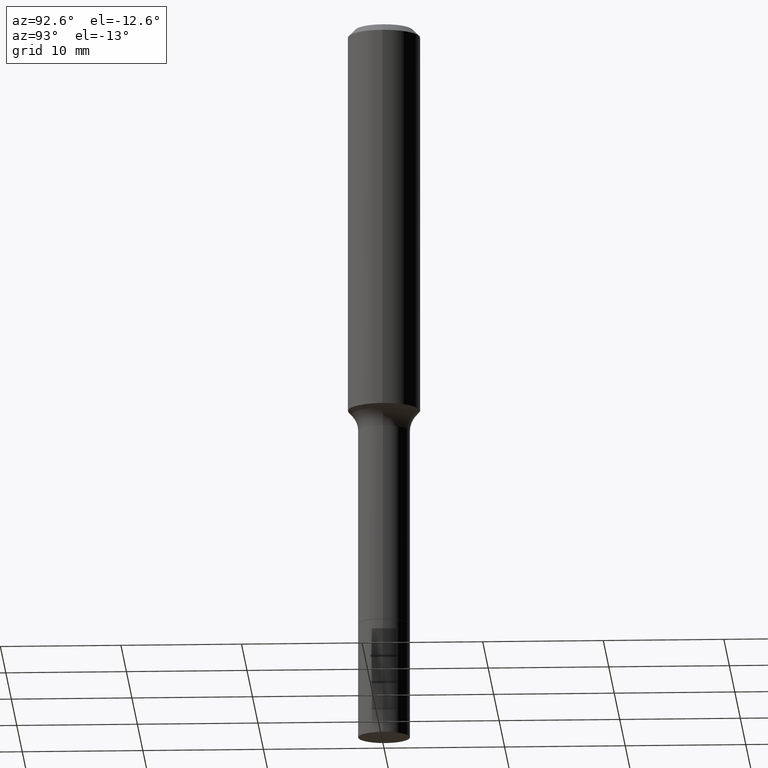
[diagram: clean part render]
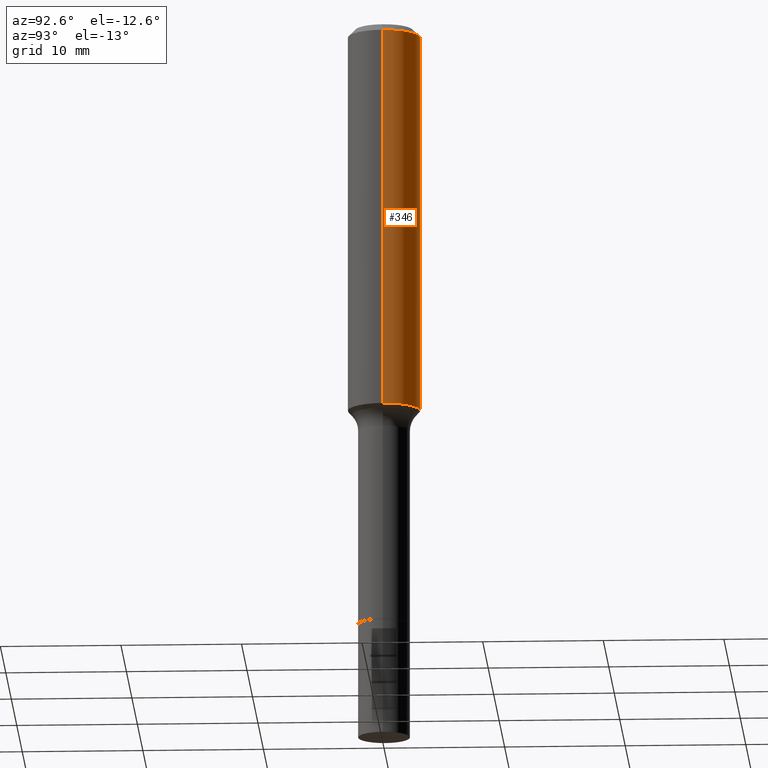
[diagram: same view with one face highlighted and labeled with its STEP entity id]
A machine part, auxiliary view. The second image highlights one B-rep face of the part: STEP entity #346.
In plain terms, the highlighted cylindrical surface (edge-blend (fillet) strip) has radius 2.9997 mm, axis along (-0, 0, 1).
Its self-contained STEP definition (entity closure, byte-faithful):
#2 = ORIENTED_EDGE ( 'NONE', *, *, #66, .F. ) ;
#3 = VERTEX_POINT ( 'NONE', #330 ) ;
#14 = DIRECTION ( 'NONE',  ( -2.445468806185136877E-29, 3.491481338843145188E-15, 1.000000000000000000 ) ) ;
#15 = EDGE_CURVE ( 'NONE', #497, #3, #338, .T. ) ;
#51 = VERTEX_POINT ( 'NONE', #455 ) ;
#57 = EDGE_CURVE ( 'NONE', #51, #447, #253, .T. ) ;
#58 = DIRECTION ( 'NONE',  ( 1.000000000000000000, -6.982962677686266711E-15, 0.000000000000000000 ) ) ;
#61 = CIRCLE ( 'NONE', #153, 0.1180999999999999966 ) ;
#66 = EDGE_CURVE ( 'NONE', #447, #3, #61, .T. ) ;
#69 = DIRECTION ( 'NONE',  ( 1.000000000000000000, -6.982962677686266711E-15, 4.876176775795936353E-29 ) ) ;
#112 = AXIS2_PLACEMENT_3D ( 'NONE', #184, #235, #69 ) ;
#153 = AXIS2_PLACEMENT_3D ( 'NONE', #419, #169, #58 ) ;
#167 = EDGE_CURVE ( 'NONE', #51, #497, #466, .T. ) ;
#169 = DIRECTION ( 'NONE',  ( -2.445468806185136597E-29, 3.491481338843145583E-15, 1.000000000000000000 ) ) ;
#170 = CARTESIAN_POINT ( 'NONE',  ( 0.1181000000000000660, -8.246878922347485584E-16, 5.758764772215003944E-30 ) ) ;
#184 = CARTESIAN_POINT ( 'NONE',  ( 0.000000000000000000, 0.000000000000000000, 0.000000000000000000 ) ) ;
#185 = CARTESIAN_POINT ( 'NONE',  ( 3.107741934530071514E-29, -4.437031845553863878E-15, -1.270816428600478609 ) ) ;
#196 = DIRECTION ( 'NONE',  ( 1.000000000000000000, -6.982962677686264344E-15, 0.000000000000000000 ) ) ;
#218 = CARTESIAN_POINT ( 'NONE',  ( 0.1180999999999999966, -9.071566814582237199E-16, -0.02362000000000014435 ) ) ;
#220 = DIRECTION ( 'NONE',  ( -2.445468806185136877E-29, 3.491481338843145188E-15, 1.000000000000000000 ) ) ;
#228 = DIRECTION ( 'NONE',  ( -2.445468806185136597E-29, 3.491481338843145583E-15, 1.000000000000000000 ) ) ;
#235 = DIRECTION ( 'NONE',  ( -2.445468806185136597E-29, 3.491481338843145583E-15, 1.000000000000000000 ) ) ;
#253 = LINE ( 'NONE', #170, #378 ) ;
#277 = AXIS2_PLACEMENT_3D ( 'NONE', #185, #228, #196 ) ;
#290 = VECTOR ( 'NONE', #220, 39.37007874015748143 ) ;
#321 = EDGE_LOOP ( 'NONE', ( #444, #380, #2, #405 ) ) ;
#330 = CARTESIAN_POINT ( 'NONE',  ( -0.1180999999999999966, -1.420599346455990485E-15, -0.02362000000000014435 ) ) ;
#338 = LINE ( 'NONE', #411, #290 ) ;
#346 = ADVANCED_FACE ( 'NONE', ( #467 ), #481, .T. ) ;
#378 = VECTOR ( 'NONE', #14, 39.37007874015748143 ) ;
#380 = ORIENTED_EDGE ( 'NONE', *, *, #15, .T. ) ;
#405 = ORIENTED_EDGE ( 'NONE', *, *, #57, .F. ) ;
#411 = CARTESIAN_POINT ( 'NONE',  ( -0.1181000000000000660, 8.391509709326787887E-16, -5.809262341591047287E-30 ) ) ;
#419 = CARTESIAN_POINT ( 'NONE',  ( 5.776197320209328408E-31, -8.246878922347560526E-17, -0.02362000000000014435 ) ) ;
#444 = ORIENTED_EDGE ( 'NONE', *, *, #167, .T. ) ;
#447 = VERTEX_POINT ( 'NONE', #218 ) ;
#455 = CARTESIAN_POINT ( 'NONE',  ( 0.1181000000000001493, -5.261719737788613718E-15, -1.270816428600478609 ) ) ;
#466 = CIRCLE ( 'NONE', #277, 0.1181000000000001493 ) ;
#467 = FACE_OUTER_BOUND ( 'NONE', #321, .T. ) ;
#481 = CYLINDRICAL_SURFACE ( 'NONE', #112, 0.1181000000000000660 ) ;
#497 = VERTEX_POINT ( 'NONE', #510 ) ;
#510 = CARTESIAN_POINT ( 'NONE',  ( -0.1181000000000001493, -3.597880874621184103E-15, -1.270816428600478609 ) ) ;